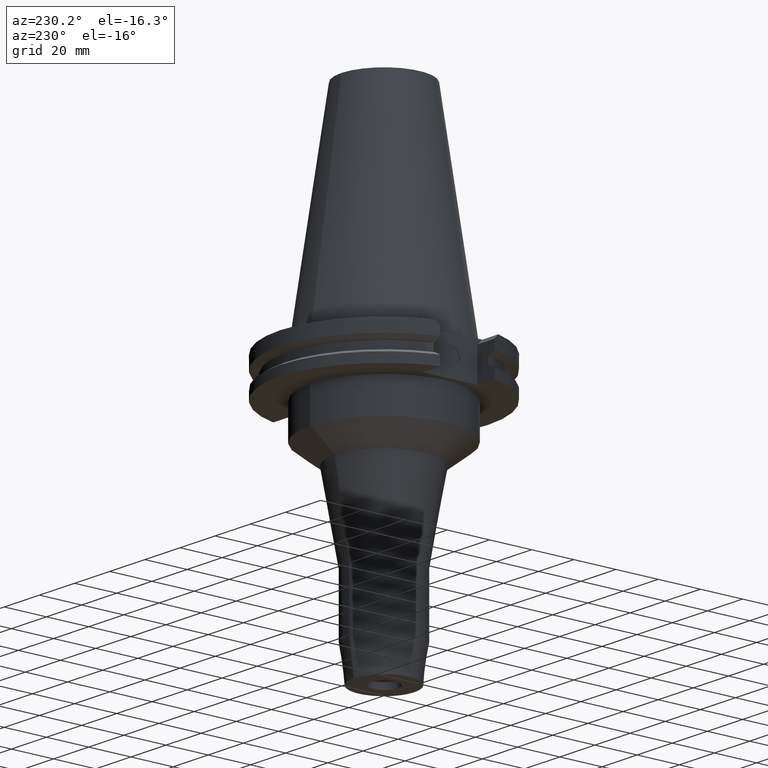
[diagram: clean part render]
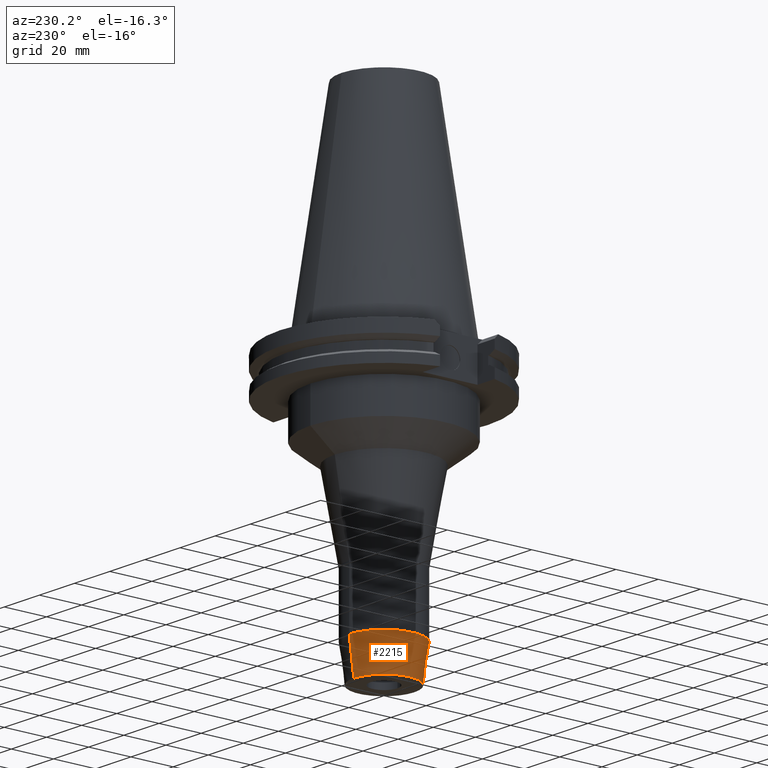
[diagram: same view with one face highlighted and labeled with its STEP entity id]
A machine part, auxiliary view. The second image highlights one B-rep face of the part: STEP entity #2215.
In plain terms, the highlighted conical surface has half-angle 7.5 deg.
Its self-contained STEP definition (entity closure, byte-faithful):
#920=CARTESIAN_POINT('',(0.E0,0.E0,-1.106349477641E2));
#921=DIRECTION('',(0.E0,0.E0,1.E0));
#922=DIRECTION('',(0.E0,1.E0,0.E0));
#923=AXIS2_PLACEMENT_3D('',#920,#921,#922);
#928=DIRECTION('',(0.E0,1.305261922199E-1,-9.914448613738E-1));
#929=VECTOR('',#928,1.650626562654E1);
#930=CARTESIAN_POINT('',(0.E0,-1.65E1,-1.106349477641E2));
#931=LINE('',#930,#929);
#935=DIRECTION('',(0.E0,-1.305261922199E-1,-9.914448613738E-1));
#936=VECTOR('',#935,1.650626562654E1);
#937=CARTESIAN_POINT('',(0.E0,1.65E1,-1.106349477641E2));
#938=LINE('',#937,#936);
#958=CARTESIAN_POINT('',(0.E0,0.E0,-1.27E2));
#959=DIRECTION('',(0.E0,0.E0,1.E0));
#960=DIRECTION('',(0.E0,1.E0,0.E0));
#961=AXIS2_PLACEMENT_3D('',#958,#959,#960);
#1360=CARTESIAN_POINT('',(0.E0,1.65E1,-1.106349477641E2));
#1361=VERTEX_POINT('',#1360);
#1362=CARTESIAN_POINT('',(0.E0,-1.650000000001E1,-1.106349477641E2));
#1363=VERTEX_POINT('',#1362);
#1364=CARTESIAN_POINT('',(0.E0,1.43455E1,-1.27E2));
#1365=VERTEX_POINT('',#1364);
#1366=CARTESIAN_POINT('',(0.E0,-1.43455E1,-1.27E2));
#1367=VERTEX_POINT('',#1366);
#2201=CARTESIAN_POINT('',(0.E0,0.E0,-1.188174738821E2));
#2202=DIRECTION('',(0.E0,0.E0,1.E0));
#2203=DIRECTION('',(0.E0,1.E0,0.E0));
#2204=AXIS2_PLACEMENT_3D('',#2201,#2202,#2203);
#2205=CONICAL_SURFACE('',#2204,1.542275000001E1,7.5E0);
#2207=ORIENTED_EDGE('',*,*,#2206,.F.);
#2208=ORIENTED_EDGE('',*,*,#2196,.T.);
#2210=ORIENTED_EDGE('',*,*,#2209,.T.);
#2212=ORIENTED_EDGE('',*,*,#2211,.F.);
#2213=EDGE_LOOP('',(#2207,#2208,#2210,#2212));
#2214=FACE_OUTER_BOUND('',#2213,.F.);
#924=CIRCLE('',#923,1.650000000001E1);
#962=CIRCLE('',#961,1.43455E1);
#2196=EDGE_CURVE('',#1361,#1363,#924,.T.);
#2206=EDGE_CURVE('',#1361,#1365,#938,.T.);
#2209=EDGE_CURVE('',#1363,#1367,#931,.T.);
#2211=EDGE_CURVE('',#1365,#1367,#962,.T.);
#2215=ADVANCED_FACE('',(#2214),#2205,.T.);